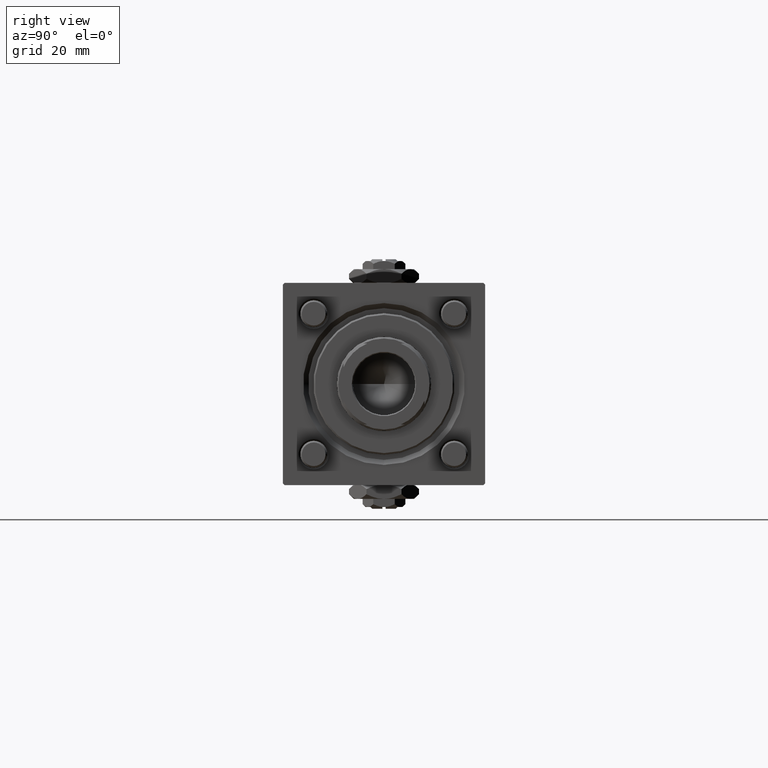
[diagram: clean part render]
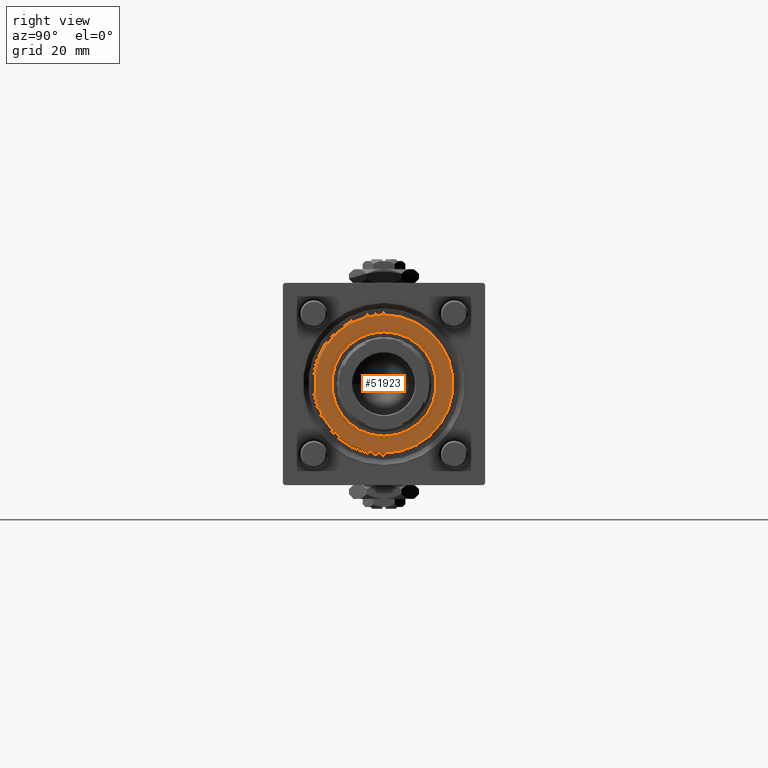
[diagram: same view with one face highlighted and labeled with its STEP entity id]
A machine part, right view. The second image highlights one B-rep face of the part: STEP entity #51923.
In plain terms, the highlighted planar face has unit normal (1, 0, 0).
Its self-contained STEP definition (entity closure, byte-faithful):
#38 = AXIS2_PLACEMENT_3D ( 'NONE', #4835, #9012, #49795 ) ;
#636 = DIRECTION ( 'NONE',  ( 1.000000000000000000, 0.000000000000000000, 0.000000000000000000 ) ) ;
#1022 = EDGE_CURVE ( 'NONE', #23644, #34619, #34964, .T. ) ;
#4835 = CARTESIAN_POINT ( 'NONE',  ( 0.000000000000000000, 0.000000000000000000, 40.70000000000000284 ) ) ;
#5243 = CIRCLE ( 'NONE', #51840, 20.49999999999999645 ) ;
#8089 = AXIS2_PLACEMENT_3D ( 'NONE', #53081, #15614, #39378 ) ;
#9012 = DIRECTION ( 'NONE',  ( 0.000000000000000000, 0.000000000000000000, 1.000000000000000000 ) ) ;
#10955 = AXIS2_PLACEMENT_3D ( 'NONE', #26521, #34574, #21748 ) ;
#13900 = DIRECTION ( 'NONE',  ( 1.000000000000000000, 0.000000000000000000, 0.000000000000000000 ) ) ;
#15614 = DIRECTION ( 'NONE',  ( 0.000000000000000000, 0.000000000000000000, 1.000000000000000000 ) ) ;
#15863 = ORIENTED_EDGE ( 'NONE', *, *, #23397, .T. ) ;
#18479 = EDGE_LOOP ( 'NONE', ( #15863, #43428 ) ) ;
#18834 = EDGE_CURVE ( 'NONE', #52392, #36069, #5243, .T. ) ;
#19661 = EDGE_CURVE ( 'NONE', #34619, #23644, #35670, .T. ) ;
#21748 = DIRECTION ( 'NONE',  ( 1.000000000000000000, 0.000000000000000000, 0.000000000000000000 ) ) ;
#23397 = EDGE_CURVE ( 'NONE', #36069, #52392, #36597, .T. ) ;
#23644 = VERTEX_POINT ( 'NONE', #42549 ) ;
#26521 = CARTESIAN_POINT ( 'NONE',  ( 0.000000000000000000, 0.000000000000000000, 40.70000000000000284 ) ) ;
#27756 = FACE_BOUND ( 'NONE', #51292, .T. ) ;
#27778 = ORIENTED_EDGE ( 'NONE', *, *, #1022, .F. ) ;
#31470 = CARTESIAN_POINT ( 'NONE',  ( 0.000000000000000000, 0.000000000000000000, 40.70000000000000284 ) ) ;
#34574 = DIRECTION ( 'NONE',  ( 0.000000000000000000, 0.000000000000000000, 1.000000000000000000 ) ) ;
#34619 = VERTEX_POINT ( 'NONE', #47976 ) ;
#34964 = CIRCLE ( 'NONE', #37822, 15.50000000000000000 ) ;
#35670 = CIRCLE ( 'NONE', #8089, 15.50000000000000000 ) ;
#35830 = ORIENTED_EDGE ( 'NONE', *, *, #19661, .F. ) ;
#36069 = VERTEX_POINT ( 'NONE', #47567 ) ;
#36097 = PLANE ( 'NONE',  #38 ) ;
#36597 = CIRCLE ( 'NONE', #10955, 20.49999999999999645 ) ;
#37822 = AXIS2_PLACEMENT_3D ( 'NONE', #31470, #49631, #13900 ) ;
#39378 = DIRECTION ( 'NONE',  ( 1.000000000000000000, 0.000000000000000000, 0.000000000000000000 ) ) ;
#41708 = DIRECTION ( 'NONE',  ( 0.000000000000000000, 0.000000000000000000, 1.000000000000000000 ) ) ;
#42549 = CARTESIAN_POINT ( 'NONE',  ( 15.50000000000000000, 0.000000000000000000, 40.70000000000000284 ) ) ;
#43428 = ORIENTED_EDGE ( 'NONE', *, *, #18834, .T. ) ;
#44889 = CARTESIAN_POINT ( 'NONE',  ( 20.49999999999999645, 2.541142108230757480E-15, 40.70000000000000284 ) ) ;
#47567 = CARTESIAN_POINT ( 'NONE',  ( -20.49999999999999645, 0.000000000000000000, 40.70000000000000284 ) ) ;
#47976 = CARTESIAN_POINT ( 'NONE',  ( -15.50000000000000000, 1.898202538678397557E-15, 40.70000000000000284 ) ) ;
#49631 = DIRECTION ( 'NONE',  ( 0.000000000000000000, 0.000000000000000000, 1.000000000000000000 ) ) ;
#49795 = DIRECTION ( 'NONE',  ( 1.000000000000000000, 0.000000000000000000, -0.000000000000000000 ) ) ;
#51253 = CARTESIAN_POINT ( 'NONE',  ( 0.000000000000000000, 0.000000000000000000, 40.70000000000000284 ) ) ;
#51292 = EDGE_LOOP ( 'NONE', ( #27778, #35830 ) ) ;
#51840 = AXIS2_PLACEMENT_3D ( 'NONE', #51253, #41708, #636 ) ;
#51923 = ADVANCED_FACE ( 'NONE', ( #27756, #58730 ), #36097, .T. ) ;
#52392 = VERTEX_POINT ( 'NONE', #44889 ) ;
#53081 = CARTESIAN_POINT ( 'NONE',  ( 0.000000000000000000, 0.000000000000000000, 40.70000000000000284 ) ) ;
#58730 = FACE_OUTER_BOUND ( 'NONE', #18479, .T. ) ;